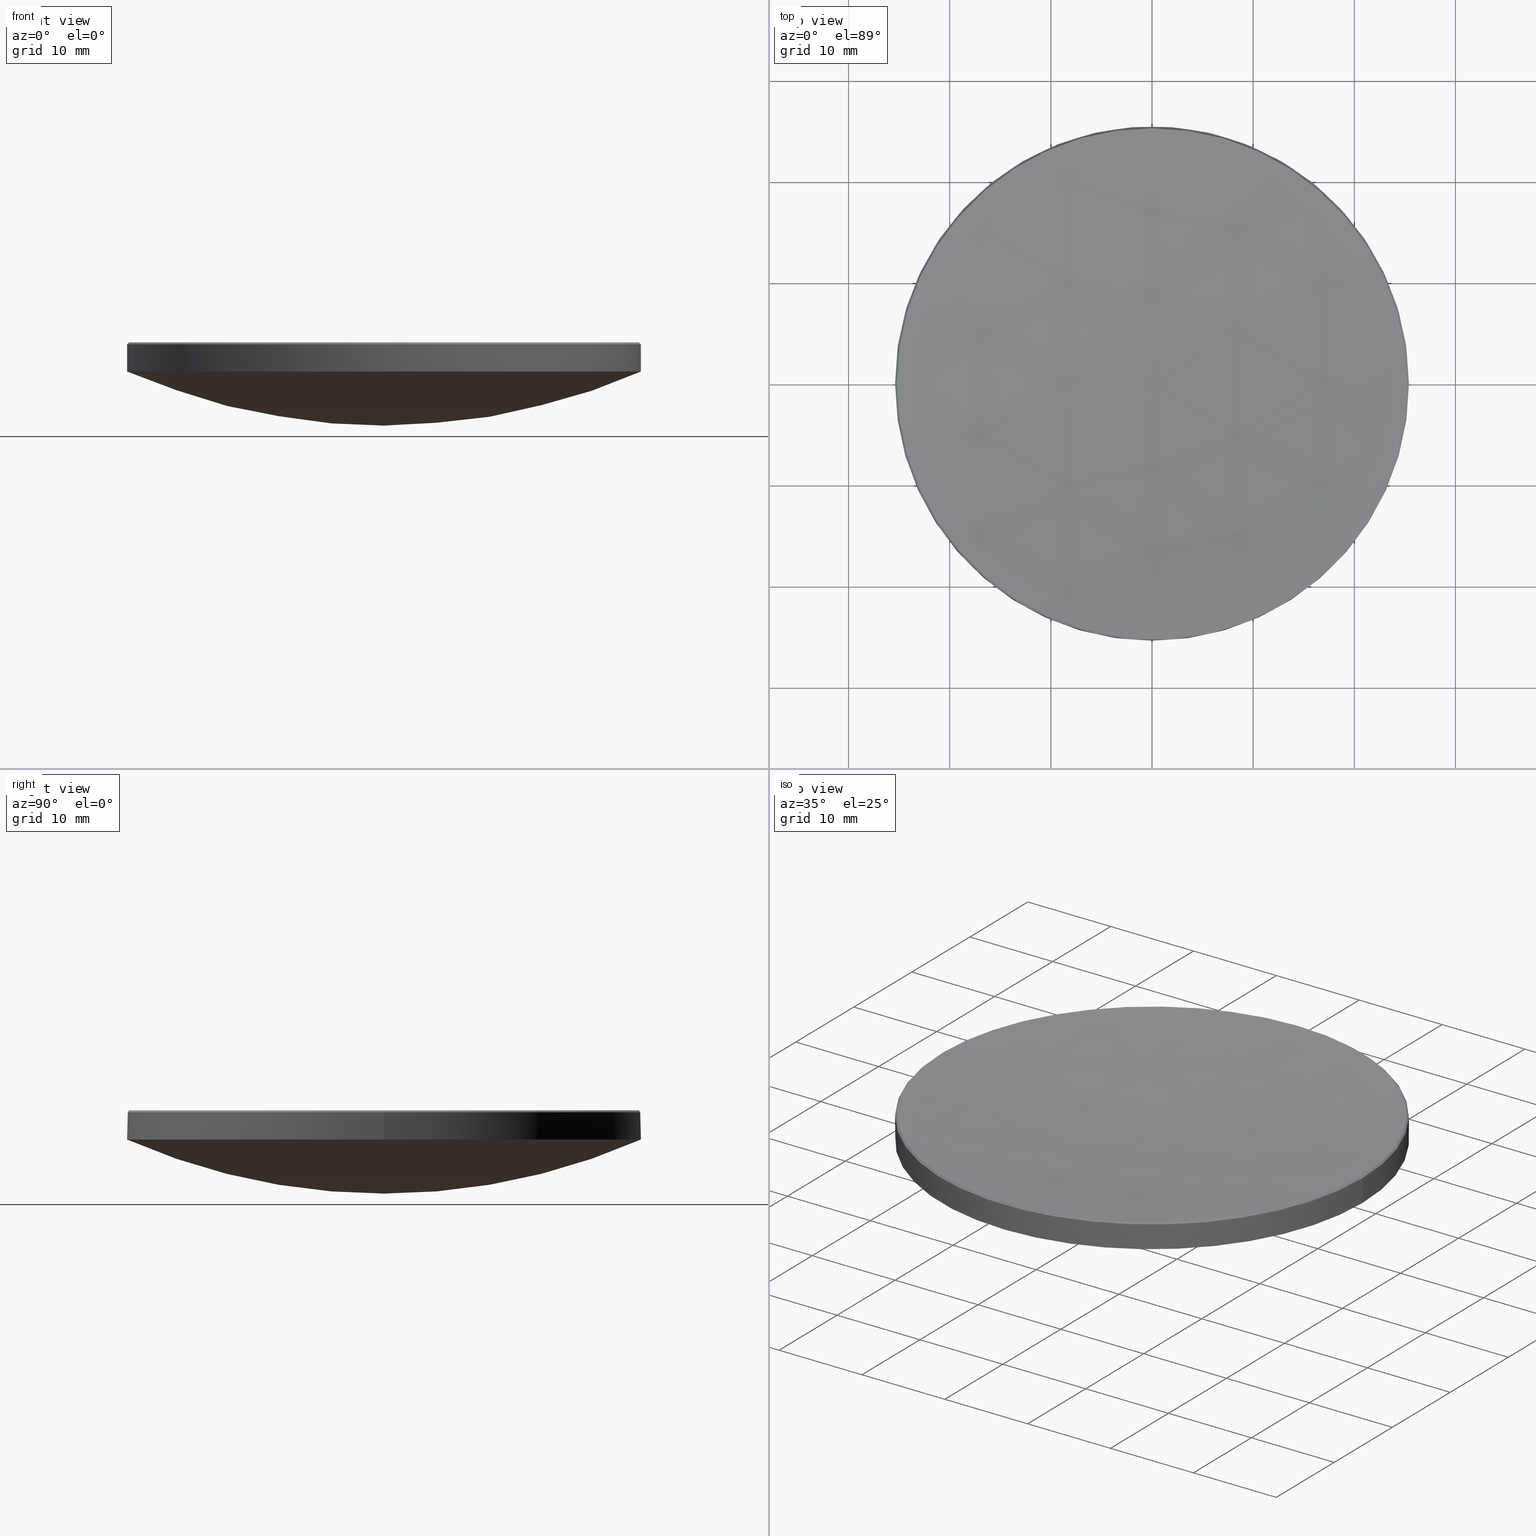
[diagram: canonical four-view strip — front | top / right | iso, engineering-drawing reading convention]
A machine part, canonical four-view strip (front | top / right | iso — engineering-drawing reading convention). The complete STEP part file that produces these views, byte-faithful:
ISO-10303-21;
HEADER;
FILE_DESCRIPTION (( 'STEP AP214' ),
    '1' );
FILE_NAME ('GLM2-050B-200-UV.STEP',
    '2024-08-09T02:53:38',
    ( 'Windows User' ),
    ( 'P R C' ),
    'SwSTEP 2.0',
    'SolidWorks 2022',
    '' );
FILE_SCHEMA (( 'AUTOMOTIVE_DESIGN' ));
ENDSEC;

DATA;
#1 =( NAMED_UNIT ( * ) PLANE_ANGLE_UNIT ( ) SI_UNIT ( $, .RADIAN. ) );
#2 = DIRECTION ( 'NONE',  ( -0.000000000000000000, -0.000000000000000000, 1.000000000000000000 ) ) ;
#3 = AXIS2_PLACEMENT_3D ( 'NONE', #75, #230, #205 ) ;
#4 = AXIS2_PLACEMENT_3D ( 'NONE', #209, #158, #107 ) ;
#5 = SHAPE_DEFINITION_REPRESENTATION ( #115, #56 ) ;
#6 = AXIS2_PLACEMENT_3D ( 'NONE', #50, #117, #265 ) ;
#7 = STYLED_ITEM ( 'NONE', ( #154 ), #98 ) ;
#8 = SPHERICAL_SURFACE ( 'NONE', #261, 193.4099999999999682 ) ;
#9 = DIRECTION ( 'NONE',  ( -0.000000000000000000, -0.000000000000000000, 1.000000000000000000 ) ) ;
#10 = VERTEX_POINT ( 'NONE', #175 ) ;
#11 = APPLICATION_CONTEXT ( 'automotive_design' ) ;
#12 = DIRECTION ( 'NONE',  ( -1.000000000000000000, 1.224646799147353207E-16, 0.000000000000000000 ) ) ;
#13 = CARTESIAN_POINT ( 'NONE',  ( 0.000000000000000000, 0.000000000000000000, 16.69999999999996376 ) ) ;
#14 = VECTOR ( 'NONE', #119, 1000.000000000000000 ) ;
#15 = VERTEX_POINT ( 'NONE', #69 ) ;
#16 = DIRECTION ( 'NONE',  ( 1.000000000000000000, 0.000000000000000000, 0.000000000000000000 ) ) ;
#17 =( GEOMETRIC_REPRESENTATION_CONTEXT ( 3 ) GLOBAL_UNCERTAINTY_ASSIGNED_CONTEXT ( ( #114 ) ) GLOBAL_UNIT_ASSIGNED_CONTEXT ( ( #28, #95, #118 ) ) REPRESENTATION_CONTEXT ( 'NONE', 'WORKASPACE' ) );
#18 = ORIENTED_EDGE ( 'NONE', *, *, #258, .F. ) ;
#19 = CONICAL_SURFACE ( 'NONE', #176, 25.22332246352458895, 0.7853981633974581600 ) ;
#20 = VERTEX_POINT ( 'NONE', #171 ) ;
#21 = FILL_AREA_STYLE_COLOUR ( '', #169 ) ;
#22 = ADVANCED_FACE ( 'NONE', ( #198 ), #278, .T. ) ;
#23 = SPHERICAL_SURFACE ( 'NONE', #120, 193.4099999999999682 ) ;
#24 = CARTESIAN_POINT ( 'NONE',  ( -25.39999999999999858, 0.000000000000000000, 16.69999999999996376 ) ) ;
#25 = FACE_OUTER_BOUND ( 'NONE', #40, .T. ) ;
#26 = FILL_AREA_STYLE ('',( #178 ) ) ;
#27 = LINE ( 'NONE', #32, #14 ) ;
#28 =( LENGTH_UNIT ( ) NAMED_UNIT ( * ) SI_UNIT ( .MILLI., .METRE. ) );
#29 = MECHANICAL_DESIGN_GEOMETRIC_PRESENTATION_REPRESENTATION (  '', ( #7 ), #217 ) ;
#30 = AXIS2_PLACEMENT_3D ( 'NONE', #270, #12, #136 ) ;
#31 = EDGE_CURVE ( 'NONE', #62, #104, #78, .T. ) ;
#32 = CARTESIAN_POINT ( 'NONE',  ( -25.39999999999999858, 0.000000000000000000, 20.00000000000000000 ) ) ;
#33 = CARTESIAN_POINT ( 'NONE',  ( 25.39999999999999858, 3.110602869834276865E-15, 16.69999999999996376 ) ) ;
#34 = ORIENTED_EDGE ( 'NONE', *, *, #41, .F. ) ;
#35 = PRODUCT_DEFINITION ( 'δ֪', '', #93, #90 ) ;
#36 = CARTESIAN_POINT ( 'NONE',  ( 25.39999999999999858, 3.110602869834276865E-15, 20.00000000000000000 ) ) ;
#37 = DIRECTION ( 'NONE',  ( 0.000000000000000000, 1.000000000000000000, 0.000000000000000000 ) ) ;
#38 = VERTEX_POINT ( 'NONE', #279 ) ;
#39 = CYLINDRICAL_SURFACE ( 'NONE', #58, 25.39999999999999858 ) ;
#40 = EDGE_LOOP ( 'NONE', ( #208, #255, #190, #147 ) ) ;
#41 = EDGE_CURVE ( 'NONE', #10, #84, #234, .T. ) ;
#42 = VERTEX_POINT ( 'NONE', #238 ) ;
#43 = VERTEX_POINT ( 'NONE', #24 ) ;
#44 = CLOSED_SHELL ( 'NONE', ( #139, #86, #126, #282, #22, #99, #263, #77 ) ) ;
#45 =( GEOMETRIC_REPRESENTATION_CONTEXT ( 3 ) GLOBAL_UNCERTAINTY_ASSIGNED_CONTEXT ( ( #194 ) ) GLOBAL_UNIT_ASSIGNED_CONTEXT ( ( #63, #1, #246 ) ) REPRESENTATION_CONTEXT ( 'NONE', 'WORKASPACE' ) );
#46 = DIRECTION ( 'NONE',  ( 0.000000000000000000, 0.000000000000000000, -1.000000000000000000 ) ) ;
#47 = CIRCLE ( 'NONE', #240, 25.39999999999999503 ) ;
#48 = DIRECTION ( 'NONE',  ( 1.000000000000000000, 0.000000000000000000, 0.000000000000000000 ) ) ;
#49 = PRODUCT_CONTEXT ( 'NONE', #260, 'mechanical' ) ;
#50 = CARTESIAN_POINT ( 'NONE',  ( 0.000000000000000000, 0.000000000000000000, 14.00000000000000000 ) ) ;
#51 = EDGE_CURVE ( 'NONE', #15, #20, #215, .T. ) ;
#52 = APPLICATION_PROTOCOL_DEFINITION ( 'draft international standard', 'automotive_design', 1998, #260 ) ;
#53 = AXIS2_PLACEMENT_3D ( 'NONE', #73, #245, #197 ) ;
#54 = CARTESIAN_POINT ( 'NONE',  ( 0.000000000000000000, 0.000000000000000000, 16.69999999999996376 ) ) ;
#55 = CARTESIAN_POINT ( 'NONE',  ( 0.000000000000000000, 0.000000000000000000, 208.6348901478288553 ) ) ;
#56 = ADVANCED_BREP_SHAPE_REPRESENTATION ( 'GLM2-050B-200-UV', ( #98, #173 ), #45 ) ;
#57 = DIRECTION ( 'NONE',  ( 1.000000000000000000, 0.000000000000000000, 0.000000000000000000 ) ) ;
#58 = AXIS2_PLACEMENT_3D ( 'NONE', #212, #129, #189 ) ;
#59 = VECTOR ( 'NONE', #163, 1000.000000000000000 ) ;
#60 = ORIENTED_EDGE ( 'NONE', *, *, #237, .T. ) ;
#61 = DIRECTION ( 'NONE',  ( 1.000000000000000000, 0.000000000000000000, 0.000000000000000000 ) ) ;
#62 = VERTEX_POINT ( 'NONE', #148 ) ;
#63 =( LENGTH_UNIT ( ) NAMED_UNIT ( * ) SI_UNIT ( .MILLI., .METRE. ) );
#64 = EDGE_LOOP ( 'NONE', ( #110, #94, #214, #276, #85 ) ) ;
#65 = EDGE_CURVE ( 'NONE', #38, #277, #257, .T. ) ;
#66 = CONICAL_SURFACE ( 'NONE', #222, 25.22332246352458895, 0.7853981633974581600 ) ;
#67 = ORIENTED_EDGE ( 'NONE', *, *, #228, .F. ) ;
#68 = UNCERTAINTY_MEASURE_WITH_UNIT (LENGTH_MEASURE( 1.000000000000000082E-05 ), #196, 'distance_accuracy_value', 'NONE');
#69 = CARTESIAN_POINT ( 'NONE',  ( -3.088966111881714183E-15, -25.22332246352477370, 16.87667753647541247 ) ) ;
#70 = PRESENTATION_LAYER_ASSIGNMENT (  '', '', ( #7 ) ) ;
#71 = DIRECTION ( 'NONE',  ( -1.000000000000000000, 0.000000000000000000, 0.000000000000000000 ) ) ;
#72 = AXIS2_PLACEMENT_3D ( 'NONE', #55, #269, #101 ) ;
#73 = CARTESIAN_POINT ( 'NONE',  ( 0.000000000000000000, 0.000000000000000000, 71.67460793104710604 ) ) ;
#74 = DIRECTION ( 'NONE',  ( -0.000000000000000000, -0.000000000000000000, -1.000000000000000000 ) ) ;
#75 = CARTESIAN_POINT ( 'NONE',  ( 0.000000000000000000, 0.000000000000000000, 71.67460793104710604 ) ) ;
#76 = PRESENTATION_STYLE_ASSIGNMENT (( #268 ) ) ;
#77 = ADVANCED_FACE ( 'NONE', ( #262 ), #19, .T. ) ;
#78 = CIRCLE ( 'NONE', #244, 25.39999999999999503 ) ;
#79 = LINE ( 'NONE', #254, #273 ) ;
#80 = CARTESIAN_POINT ( 'NONE',  ( 0.000000000000000000, 0.000000000000000000, 14.00000000000000000 ) ) ;
#81 = ORIENTED_EDGE ( 'NONE', *, *, #228, .T. ) ;
#82 = FACE_OUTER_BOUND ( 'NONE', #64, .T. ) ;
#83 = AXIS2_PLACEMENT_3D ( 'NONE', #156, #207, #247 ) ;
#84 = VERTEX_POINT ( 'NONE', #135 ) ;
#85 = ORIENTED_EDGE ( 'NONE', *, *, #272, .F. ) ;
#86 = ADVANCED_FACE ( 'NONE', ( #25 ), #23, .F. ) ;
#87 = EDGE_LOOP ( 'NONE', ( #210, #150, #188, #161, #18 ) ) ;
#88 = EDGE_CURVE ( 'NONE', #102, #84, #203, .T. ) ;
#89 = CARTESIAN_POINT ( 'NONE',  ( 0.000000000000000000, 0.000000000000000000, 16.87667753647536983 ) ) ;
#90 = PRODUCT_DEFINITION_CONTEXT ( 'detailed design', #11, 'design' ) ;
#91 = SURFACE_STYLE_USAGE ( .BOTH. , #113 ) ;
#92 = SURFACE_SIDE_STYLE ('',( #281 ) ) ;
#93 = PRODUCT_DEFINITION_FORMATION_WITH_SPECIFIED_SOURCE ( '�κ�', '', #243, .NOT_KNOWN. ) ;
#94 = ORIENTED_EDGE ( 'NONE', *, *, #174, .T. ) ;
#95 =( NAMED_UNIT ( * ) PLANE_ANGLE_UNIT ( ) SI_UNIT ( $, .RADIAN. ) );
#96 = FACE_OUTER_BOUND ( 'NONE', #165, .T. ) ;
#97 = PRESENTATION_LAYER_ASSIGNMENT (  '', '', ( #229 ) ) ;
#98 = MANIFOLD_SOLID_BREP ( '����1', #44 ) ;
#99 = ADVANCED_FACE ( 'NONE', ( #122 ), #125, .T. ) ;
#100 = CARTESIAN_POINT ( 'NONE',  ( 0.000000000000000000, 0.000000000000000000, 208.6348901478288553 ) ) ;
#101 = DIRECTION ( 'NONE',  ( -1.224646799147353207E-16, -1.000000000000000000, 0.000000000000000000 ) ) ;
#102 = VERTEX_POINT ( 'NONE', #252 ) ;
#103 = AXIS2_PLACEMENT_3D ( 'NONE', #239, #74, #71 ) ;
#104 = VERTEX_POINT ( 'NONE', #251 ) ;
#105 = COLOUR_RGB ( '',1.000000000000000000, 1.000000000000000000, 1.000000000000000000 ) ;
#106 = AXIS2_PLACEMENT_3D ( 'NONE', #13, #187, #227 ) ;
#107 = DIRECTION ( 'NONE',  ( 1.000000000000000000, 0.000000000000000000, 0.000000000000000000 ) ) ;
#108 = CIRCLE ( 'NONE', #30, 63.02000000000000313 ) ;
#109 = FACE_OUTER_BOUND ( 'NONE', #87, .T. ) ;
#110 = ORIENTED_EDGE ( 'NONE', *, *, #168, .F. ) ;
#111 = ORIENTED_EDGE ( 'NONE', *, *, #191, .F. ) ;
#112 = ORIENTED_EDGE ( 'NONE', *, *, #51, .F. ) ;
#113 = SURFACE_SIDE_STYLE ('',( #172 ) ) ;
#114 = UNCERTAINTY_MEASURE_WITH_UNIT (LENGTH_MEASURE( 1.000000000000000082E-05 ), #28, 'distance_accuracy_value', 'NONE');
#115 = PRODUCT_DEFINITION_SHAPE ( 'NONE', 'NONE',  #35 ) ;
#116 = DIRECTION ( 'NONE',  ( 1.000000000000000000, 0.000000000000000000, 0.000000000000000000 ) ) ;
#117 = DIRECTION ( 'NONE',  ( -0.000000000000000000, -0.000000000000000000, 1.000000000000000000 ) ) ;
#118 =( NAMED_UNIT ( * ) SI_UNIT ( $, .STERADIAN. ) SOLID_ANGLE_UNIT ( ) );
#119 = DIRECTION ( 'NONE',  ( -0.000000000000000000, -0.000000000000000000, -1.000000000000000000 ) ) ;
#120 = AXIS2_PLACEMENT_3D ( 'NONE', #280, #219, #167 ) ;
#121 = CIRCLE ( 'NONE', #149, 25.22332246352458540 ) ;
#122 = FACE_OUTER_BOUND ( 'NONE', #216, .T. ) ;
#123 = FACE_OUTER_BOUND ( 'NONE', #233, .T. ) ;
#124 = EDGE_LOOP ( 'NONE', ( #236, #112, #231, #182, #271 ) ) ;
#125 = SPHERICAL_SURFACE ( 'NONE', #225, 63.02000000000000313 ) ;
#126 = ADVANCED_FACE ( 'NONE', ( #123 ), #141, .T. ) ;
#127 = LINE ( 'NONE', #36, #177 ) ;
#128 = ORIENTED_EDGE ( 'NONE', *, *, #250, .F. ) ;
#129 = DIRECTION ( 'NONE',  ( -0.000000000000000000, -0.000000000000000000, -1.000000000000000000 ) ) ;
#130 = ORIENTED_EDGE ( 'NONE', *, *, #258, .T. ) ;
#131 = EDGE_CURVE ( 'NONE', #43, #206, #185, .T. ) ;
#132 = ORIENTED_EDGE ( 'NONE', *, *, #151, .T. ) ;
#133 = DIRECTION ( 'NONE',  ( -1.000000000000000000, 0.000000000000000000, 0.000000000000000000 ) ) ;
#134 = CARTESIAN_POINT ( 'NONE',  ( 0.000000000000000000, 0.000000000000000000, 16.87667753647542668 ) ) ;
#135 = CARTESIAN_POINT ( 'NONE',  ( 0.000000000000000000, 25.39999999999999147, 14.00000000000000178 ) ) ;
#136 = DIRECTION ( 'NONE',  ( -1.224646799147353207E-16, -1.000000000000000000, 0.000000000000000000 ) ) ;
#137 = CIRCLE ( 'NONE', #170, 25.22332246352458540 ) ;
#138 = DIRECTION ( 'NONE',  ( -0.7071067811865544561, 0.000000000000000000, -0.7071067811865405783 ) ) ;
#139 = ADVANCED_FACE ( 'NONE', ( #82 ), #66, .T. ) ;
#140 = DIRECTION ( 'NONE',  ( -1.000000000000000000, 0.000000000000000000, 0.000000000000000000 ) ) ;
#141 = SPHERICAL_SURFACE ( 'NONE', #3, 63.02000000000000313 ) ;
#142 = EDGE_LOOP ( 'NONE', ( #275, #132, #130, #213, #81 ) ) ;
#143 = CARTESIAN_POINT ( 'NONE',  ( 0.000000000000000000, 0.000000000000000000, 71.67460793104710604 ) ) ;
#144 = ORIENTED_EDGE ( 'NONE', *, *, #31, .F. ) ;
#145 = DIRECTION ( 'NONE',  ( 0.000000000000000000, 1.000000000000000000, 0.000000000000000000 ) ) ;
#146 = ORIENTED_EDGE ( 'NONE', *, *, #65, .T. ) ;
#147 = ORIENTED_EDGE ( 'NONE', *, *, #168, .T. ) ;
#148 = CARTESIAN_POINT ( 'NONE',  ( -25.39999999999999503, 0.000000000000000000, 14.00000000000000000 ) ) ;
#149 = AXIS2_PLACEMENT_3D ( 'NONE', #199, #2, #57 ) ;
#150 = ORIENTED_EDGE ( 'NONE', *, *, #155, .T. ) ;
#151 = EDGE_CURVE ( 'NONE', #206, #43, #180, .T. ) ;
#152 = DIRECTION ( 'NONE',  ( 1.000000000000000000, 0.000000000000000000, 0.000000000000000000 ) ) ;
#153 = DIRECTION ( 'NONE',  ( 1.000000000000000000, 0.000000000000000000, 0.000000000000000000 ) ) ;
#154 = PRESENTATION_STYLE_ASSIGNMENT (( #91 ) ) ;
#155 = EDGE_CURVE ( 'NONE', #206, #10, #127, .T. ) ;
#156 = CARTESIAN_POINT ( 'NONE',  ( 0.000000000000000000, 0.000000000000000000, 14.00000000000000000 ) ) ;
#157 = CARTESIAN_POINT ( 'NONE',  ( 0.000000000000000000, 0.000000000000000000, 0.000000000000000000 ) ) ;
#158 = DIRECTION ( 'NONE',  ( -0.000000000000000000, -0.000000000000000000, 1.000000000000000000 ) ) ;
#159 = DIRECTION ( 'NONE',  ( 0.000000000000000000, 0.000000000000000000, -1.000000000000000000 ) ) ;
#160 = DIRECTION ( 'NONE',  ( -1.000000000000000000, 0.000000000000000000, 0.000000000000000000 ) ) ;
#161 = ORIENTED_EDGE ( 'NONE', *, *, #191, .T. ) ;
#162 = MECHANICAL_DESIGN_GEOMETRIC_PRESENTATION_REPRESENTATION (  '', ( #229 ), #17 ) ;
#163 = DIRECTION ( 'NONE',  ( 0.7071067811865544561, 8.659560562355019140E-17, -0.7071067811865405783 ) ) ;
#164 = ORIENTED_EDGE ( 'NONE', *, *, #88, .F. ) ;
#165 = EDGE_LOOP ( 'NONE', ( #253, #146, #192, #60 ) ) ;
#166 = AXIS2_PLACEMENT_3D ( 'NONE', #241, #116, #220 ) ;
#167 = DIRECTION ( 'NONE',  ( 0.000000000000000000, 1.000000000000000000, 0.000000000000000000 ) ) ;
#168 = EDGE_CURVE ( 'NONE', #20, #277, #186, .T. ) ;
#169 = COLOUR_RGB ( '',1.000000000000000000, 1.000000000000000000, 1.000000000000000000 ) ;
#170 = AXIS2_PLACEMENT_3D ( 'NONE', #202, #256, #16 ) ;
#171 = CARTESIAN_POINT ( 'NONE',  ( 25.22332246352458540, 3.099784490857984480E-15, 16.87667753647542668 ) ) ;
#172 = SURFACE_STYLE_FILL_AREA ( #221 ) ;
#173 = AXIS2_PLACEMENT_3D ( 'NONE', #157, #248, #153 ) ;
#174 = EDGE_CURVE ( 'NONE', #20, #206, #274, .T. ) ;
#175 = CARTESIAN_POINT ( 'NONE',  ( 25.39999999999999503, 3.110602869834276471E-15, 14.00000000000000000 ) ) ;
#176 = AXIS2_PLACEMENT_3D ( 'NONE', #89, #46, #133 ) ;
#177 = VECTOR ( 'NONE', #224, 1000.000000000000000 ) ;
#178 = FILL_AREA_STYLE_COLOUR ( '', #105 ) ;
#179 = EDGE_CURVE ( 'NONE', #42, #43, #79, .T. ) ;
#180 = CIRCLE ( 'NONE', #218, 25.39999999999999858 ) ;
#181 = CARTESIAN_POINT ( 'NONE',  ( 0.000000000000000000, 0.000000000000000000, 16.87667753647536983 ) ) ;
#182 = ORIENTED_EDGE ( 'NONE', *, *, #179, .T. ) ;
#183 = DIRECTION ( 'NONE',  ( 0.000000000000000000, 0.000000000000000000, -1.000000000000000000 ) ) ;
#184 = ORIENTED_EDGE ( 'NONE', *, *, #88, .T. ) ;
#185 = CIRCLE ( 'NONE', #106, 25.39999999999999858 ) ;
#186 = CIRCLE ( 'NONE', #4, 25.22332246352458540 ) ;
#187 = DIRECTION ( 'NONE',  ( 0.000000000000000000, 0.000000000000000000, -1.000000000000000000 ) ) ;
#188 = ORIENTED_EDGE ( 'NONE', *, *, #41, .T. ) ;
#189 = DIRECTION ( 'NONE',  ( -1.000000000000000000, 0.000000000000000000, 0.000000000000000000 ) ) ;
#190 = ORIENTED_EDGE ( 'NONE', *, *, #51, .T. ) ;
#191 = EDGE_CURVE ( 'NONE', #84, #62, #47, .T. ) ;
#192 = ORIENTED_EDGE ( 'NONE', *, *, #272, .T. ) ;
#193 = DIRECTION ( 'NONE',  ( -0.000000000000000000, -0.000000000000000000, 1.000000000000000000 ) ) ;
#194 = UNCERTAINTY_MEASURE_WITH_UNIT (LENGTH_MEASURE( 1.000000000000000082E-05 ), #63, 'distance_accuracy_value', 'NONE');
#195 = CARTESIAN_POINT ( 'NONE',  ( 0.000000000000000000, 0.000000000000000000, 14.00000000000000000 ) ) ;
#196 =( LENGTH_UNIT ( ) NAMED_UNIT ( * ) SI_UNIT ( .MILLI., .METRE. ) );
#197 = DIRECTION ( 'NONE',  ( 0.000000000000000000, 0.000000000000000000, -1.000000000000000000 ) ) ;
#198 = FACE_OUTER_BOUND ( 'NONE', #142, .T. ) ;
#199 = CARTESIAN_POINT ( 'NONE',  ( 0.000000000000000000, 0.000000000000000000, 16.87667753647542668 ) ) ;
#200 = CIRCLE ( 'NONE', #83, 25.39999999999999503 ) ;
#201 = APPLICATION_PROTOCOL_DEFINITION ( 'draft international standard', 'automotive_design', 1998, #11 ) ;
#202 = CARTESIAN_POINT ( 'NONE',  ( 0.000000000000000000, 0.000000000000000000, 16.87667753647542668 ) ) ;
#203 = CIRCLE ( 'NONE', #53, 63.02000000000000313 ) ;
#204 = EDGE_CURVE ( 'NONE', #38, #15, #226, .T. ) ;
#205 = DIRECTION ( 'NONE',  ( 0.000000000000000000, 1.000000000000000000, 0.000000000000000000 ) ) ;
#206 = VERTEX_POINT ( 'NONE', #33 ) ;
#207 = DIRECTION ( 'NONE',  ( -0.000000000000000000, -0.000000000000000000, 1.000000000000000000 ) ) ;
#208 = ORIENTED_EDGE ( 'NONE', *, *, #65, .F. ) ;
#209 = CARTESIAN_POINT ( 'NONE',  ( 0.000000000000000000, 0.000000000000000000, 16.87667753647542668 ) ) ;
#210 = ORIENTED_EDGE ( 'NONE', *, *, #131, .T. ) ;
#211 = AXIS2_PLACEMENT_3D ( 'NONE', #134, #193, #152 ) ;
#212 = CARTESIAN_POINT ( 'NONE',  ( 0.000000000000000000, 0.000000000000000000, 20.00000000000000000 ) ) ;
#213 = ORIENTED_EDGE ( 'NONE', *, *, #31, .T. ) ;
#214 = ORIENTED_EDGE ( 'NONE', *, *, #131, .F. ) ;
#215 = CIRCLE ( 'NONE', #211, 25.22332246352458540 ) ;
#216 = EDGE_LOOP ( 'NONE', ( #128, #184, #34, #67 ) ) ;
#217 =( GEOMETRIC_REPRESENTATION_CONTEXT ( 3 ) GLOBAL_UNCERTAINTY_ASSIGNED_CONTEXT ( ( #68 ) ) GLOBAL_UNIT_ASSIGNED_CONTEXT ( ( #196, #264, #223 ) ) REPRESENTATION_CONTEXT ( 'NONE', 'WORKASPACE' ) );
#218 = AXIS2_PLACEMENT_3D ( 'NONE', #54, #183, #61 ) ;
#219 = DIRECTION ( 'NONE',  ( -1.000000000000000000, 0.000000000000000000, 0.000000000000000000 ) ) ;
#220 = DIRECTION ( 'NONE',  ( 0.000000000000000000, 0.000000000000000000, -1.000000000000000000 ) ) ;
#221 = FILL_AREA_STYLE ('',( #21 ) ) ;
#222 = AXIS2_PLACEMENT_3D ( 'NONE', #181, #159, #232 ) ;
#223 =( NAMED_UNIT ( * ) SI_UNIT ( $, .STERADIAN. ) SOLID_ANGLE_UNIT ( ) );
#224 = DIRECTION ( 'NONE',  ( -0.000000000000000000, -0.000000000000000000, -1.000000000000000000 ) ) ;
#225 = AXIS2_PLACEMENT_3D ( 'NONE', #143, #160, #37 ) ;
#226 = CIRCLE ( 'NONE', #72, 193.4099999999999682 ) ;
#227 = DIRECTION ( 'NONE',  ( 1.000000000000000000, 0.000000000000000000, 0.000000000000000000 ) ) ;
#228 = EDGE_CURVE ( 'NONE', #104, #10, #200, .T. ) ;
#229 = STYLED_ITEM ( 'NONE', ( #76 ), #56 ) ;
#230 = DIRECTION ( 'NONE',  ( -1.000000000000000000, 0.000000000000000000, 0.000000000000000000 ) ) ;
#231 = ORIENTED_EDGE ( 'NONE', *, *, #237, .F. ) ;
#232 = DIRECTION ( 'NONE',  ( -1.000000000000000000, 0.000000000000000000, 0.000000000000000000 ) ) ;
#233 = EDGE_LOOP ( 'NONE', ( #164, #259, #144, #111 ) ) ;
#234 = CIRCLE ( 'NONE', #6, 25.39999999999999503 ) ;
#235 = CARTESIAN_POINT ( 'NONE',  ( 0.000000000000000000, 25.22332246352477370, 16.87667753647541247 ) ) ;
#236 = ORIENTED_EDGE ( 'NONE', *, *, #174, .F. ) ;
#237 = EDGE_CURVE ( 'NONE', #42, #15, #121, .T. ) ;
#238 = CARTESIAN_POINT ( 'NONE',  ( -25.22332246352458540, 0.000000000000000000, 16.87667753647542668 ) ) ;
#239 = CARTESIAN_POINT ( 'NONE',  ( 0.000000000000000000, 0.000000000000000000, 20.00000000000000000 ) ) ;
#240 = AXIS2_PLACEMENT_3D ( 'NONE', #80, #9, #249 ) ;
#241 = CARTESIAN_POINT ( 'NONE',  ( 0.000000000000000000, 0.000000000000000000, 208.6348901478288553 ) ) ;
#242 = DIRECTION ( 'NONE',  ( -0.000000000000000000, -0.000000000000000000, 1.000000000000000000 ) ) ;
#243 = PRODUCT ( 'GLM2-050B-200-UV', 'GLM2-050B-200-UV', '', ( #49 ) ) ;
#244 = AXIS2_PLACEMENT_3D ( 'NONE', #195, #242, #48 ) ;
#245 = DIRECTION ( 'NONE',  ( 1.000000000000000000, -0.000000000000000000, 0.000000000000000000 ) ) ;
#246 =( NAMED_UNIT ( * ) SI_UNIT ( $, .STERADIAN. ) SOLID_ANGLE_UNIT ( ) );
#247 = DIRECTION ( 'NONE',  ( 1.000000000000000000, 0.000000000000000000, 0.000000000000000000 ) ) ;
#248 = DIRECTION ( 'NONE',  ( 0.000000000000000000, 0.000000000000000000, 1.000000000000000000 ) ) ;
#249 = DIRECTION ( 'NONE',  ( 1.000000000000000000, 0.000000000000000000, 0.000000000000000000 ) ) ;
#250 = EDGE_CURVE ( 'NONE', #102, #104, #108, .T. ) ;
#251 = CARTESIAN_POINT ( 'NONE',  ( -3.110602869834276076E-15, -25.39999999999999147, 14.00000000000000178 ) ) ;
#252 = CARTESIAN_POINT ( 'NONE',  ( 0.000000000000000000, 3.858862064113310261E-15, 8.654607931047095803 ) ) ;
#253 = ORIENTED_EDGE ( 'NONE', *, *, #204, .F. ) ;
#254 = CARTESIAN_POINT ( 'NONE',  ( -25.22332246352458895, 0.000000000000000000, 16.87667753647536983 ) ) ;
#255 = ORIENTED_EDGE ( 'NONE', *, *, #204, .T. ) ;
#256 = DIRECTION ( 'NONE',  ( -0.000000000000000000, -0.000000000000000000, 1.000000000000000000 ) ) ;
#257 = CIRCLE ( 'NONE', #166, 193.4099999999999682 ) ;
#258 = EDGE_CURVE ( 'NONE', #43, #62, #27, .T. ) ;
#259 = ORIENTED_EDGE ( 'NONE', *, *, #250, .T. ) ;
#260 = APPLICATION_CONTEXT ( 'automotive_design' ) ;
#261 = AXIS2_PLACEMENT_3D ( 'NONE', #100, #140, #145 ) ;
#262 = FACE_OUTER_BOUND ( 'NONE', #124, .T. ) ;
#263 = ADVANCED_FACE ( 'NONE', ( #96 ), #8, .F. ) ;
#264 =( NAMED_UNIT ( * ) PLANE_ANGLE_UNIT ( ) SI_UNIT ( $, .RADIAN. ) );
#265 = DIRECTION ( 'NONE',  ( 1.000000000000000000, 0.000000000000000000, 0.000000000000000000 ) ) ;
#266 = PRODUCT_RELATED_PRODUCT_CATEGORY ( 'part', '', ( #243 ) ) ;
#267 = CARTESIAN_POINT ( 'NONE',  ( 25.22332246352458895, 3.088966111881692095E-15, 16.87667753647536983 ) ) ;
#268 = SURFACE_STYLE_USAGE ( .BOTH. , #92 ) ;
#269 = DIRECTION ( 'NONE',  ( -1.000000000000000000, 1.224646799147353207E-16, 0.000000000000000000 ) ) ;
#270 = CARTESIAN_POINT ( 'NONE',  ( 0.000000000000000000, 0.000000000000000000, 71.67460793104710604 ) ) ;
#271 = ORIENTED_EDGE ( 'NONE', *, *, #151, .F. ) ;
#272 = EDGE_CURVE ( 'NONE', #277, #42, #137, .T. ) ;
#273 = VECTOR ( 'NONE', #138, 1000.000000000000000 ) ;
#274 = LINE ( 'NONE', #267, #59 ) ;
#275 = ORIENTED_EDGE ( 'NONE', *, *, #155, .F. ) ;
#276 = ORIENTED_EDGE ( 'NONE', *, *, #179, .F. ) ;
#277 = VERTEX_POINT ( 'NONE', #235 ) ;
#278 = CYLINDRICAL_SURFACE ( 'NONE', #103, 25.39999999999999858 ) ;
#279 = CARTESIAN_POINT ( 'NONE',  ( 0.000000000000000000, 1.184294687115447689E-14, 15.22489014782887828 ) ) ;
#280 = CARTESIAN_POINT ( 'NONE',  ( 0.000000000000000000, 0.000000000000000000, 208.6348901478288553 ) ) ;
#281 = SURFACE_STYLE_FILL_AREA ( #26 ) ;
#282 = ADVANCED_FACE ( 'NONE', ( #109 ), #39, .T. ) ;
ENDSEC;
END-ISO-10303-21;
